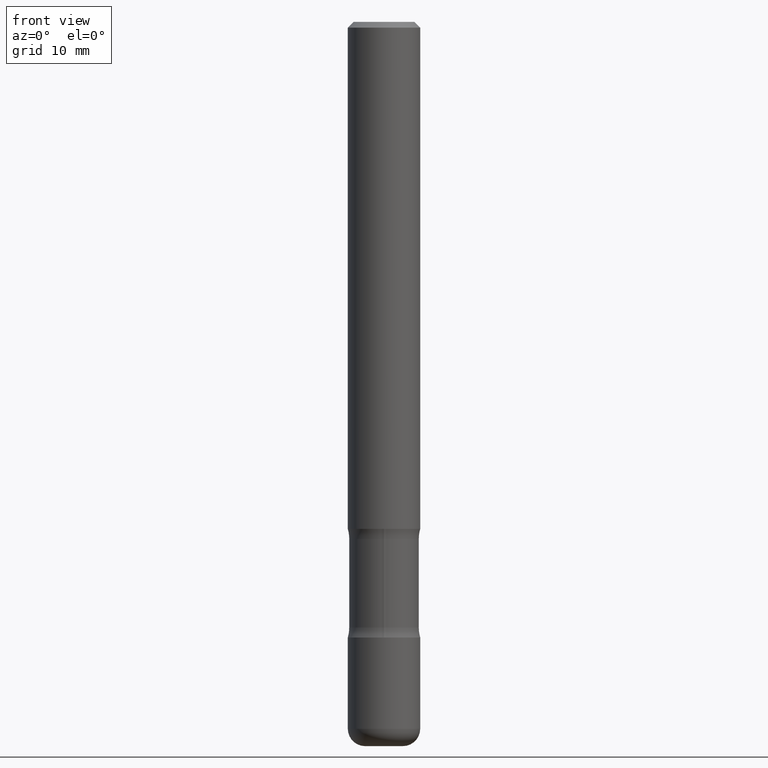
[diagram: clean part render]
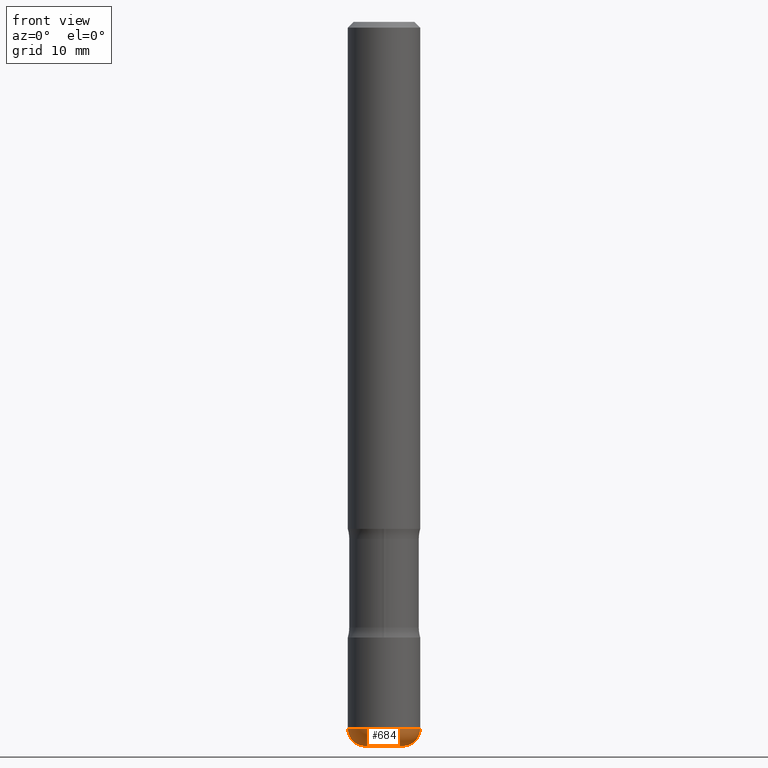
[diagram: same view with one face highlighted and labeled with its STEP entity id]
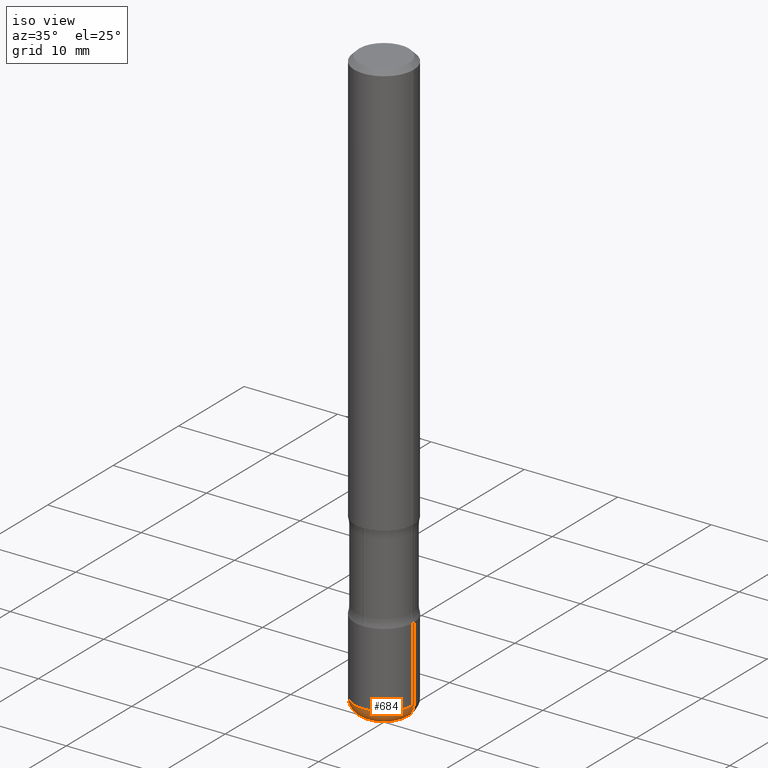
[diagram: same view with one face highlighted and labeled with its STEP entity id]
A machine part, front view. The second image highlights one B-rep face of the part: STEP entity #684.
A second angle (iso view) of the same face is appended — the face is thin or edge-on in the first view.
In plain terms, the highlighted toroidal blend (fillet) surface has major radius 1.651 mm and minor (blend) radius 1.524 mm.
Its self-contained STEP definition (entity closure, byte-faithful):
#4 = AXIS2_PLACEMENT_3D ( 'NONE', #162, #111, #786 ) ;
#111 = DIRECTION ( 'NONE',  ( -2.445468806185136597E-29, 3.491481338843145583E-15, 1.000000000000000000 ) ) ;
#113 = ORIENTED_EDGE ( 'NONE', *, *, #756, .T. ) ;
#115 = CARTESIAN_POINT ( 'NONE',  ( 0.06500000000000000222, -8.973107040826881753E-15, -2.440000000000000391 ) ) ;
#123 = VERTEX_POINT ( 'NONE', #642 ) ;
#162 = CARTESIAN_POINT ( 'NONE',  ( 5.966943887091733341E-29, -8.519214466777275048E-15, -2.440000000000000391 ) ) ;
#184 = CARTESIAN_POINT ( 'NONE',  ( -0.06500000000000001610, -7.948943307970475008E-15, -2.499999999999999556 ) ) ;
#191 = VERTEX_POINT ( 'NONE', #663 ) ;
#197 = EDGE_CURVE ( 'NONE', #441, #123, #232, .T. ) ;
#199 = ORIENTED_EDGE ( 'NONE', *, *, #697, .F. ) ;
#232 = CIRCLE ( 'NONE', #392, 0.1250000000000000000 ) ;
#235 = CARTESIAN_POINT ( 'NONE',  ( 5.966943887091733341E-29, -8.519214466777275048E-15, -2.440000000000000391 ) ) ;
#272 = CIRCLE ( 'NONE', #554, 0.05999999999999969247 ) ;
#318 = ORIENTED_EDGE ( 'NONE', *, *, #487, .T. ) ;
#325 = CIRCLE ( 'NONE', #466, 0.06500000000000001610 ) ;
#348 = VERTEX_POINT ( 'NONE', #184 ) ;
#356 = DIRECTION ( 'NONE',  ( 7.105427357601001859E-15, 1.000000000000000000, -3.491481338843145583E-15 ) ) ;
#364 = CARTESIAN_POINT ( 'NONE',  ( -0.06500000000000000222, -8.057361688533210306E-15, -2.440000000000000391 ) ) ;
#392 = AXIS2_PLACEMENT_3D ( 'NONE', #235, #721, #802 ) ;
#413 = FACE_OUTER_BOUND ( 'NONE', #688, .T. ) ;
#441 = VERTEX_POINT ( 'NONE', #745 ) ;
#452 = CIRCLE ( 'NONE', #782, 0.05999999999999969247 ) ;
#466 = AXIS2_PLACEMENT_3D ( 'NONE', #757, #774, #573 ) ;
#487 = EDGE_CURVE ( 'NONE', #348, #191, #325, .T. ) ;
#554 = AXIS2_PLACEMENT_3D ( 'NONE', #115, #716, #795 ) ;
#570 = ORIENTED_EDGE ( 'NONE', *, *, #197, .F. ) ;
#573 = DIRECTION ( 'NONE',  ( 1.000000000000000000, -6.982962677686272233E-15, 0.000000000000000000 ) ) ;
#593 = TOROIDAL_SURFACE ( 'NONE', #4, 0.06500000000000000222, 0.05999999999999968553 ) ;
#642 = CARTESIAN_POINT ( 'NONE',  ( 0.1249999999999998473, -9.392084801488056809E-15, -2.440000000000000391 ) ) ;
#661 = DIRECTION ( 'NONE',  ( -1.000000000000000000, 7.105427357600994759E-15, 0.000000000000000000 ) ) ;
#663 = CARTESIAN_POINT ( 'NONE',  ( 0.06500000000000001610, -9.182595921157470070E-15, -2.499999999999999556 ) ) ;
#684 = ADVANCED_FACE ( 'NONE', ( #413 ), #593, .T. ) ;
#688 = EDGE_LOOP ( 'NONE', ( #199, #318, #113, #570 ) ) ;
#697 = EDGE_CURVE ( 'NONE', #348, #441, #452, .T. ) ;
#716 = DIRECTION ( 'NONE',  ( -6.982962677686266711E-15, -1.000000000000000000, 3.491481338843145583E-15 ) ) ;
#721 = DIRECTION ( 'NONE',  ( -2.445468806185136597E-29, 3.491481338843145583E-15, 1.000000000000000000 ) ) ;
#745 = CARTESIAN_POINT ( 'NONE',  ( -0.1249999999999998473, -7.631036047077151393E-15, -2.440000000000000391 ) ) ;
#756 = EDGE_CURVE ( 'NONE', #191, #123, #272, .T. ) ;
#757 = CARTESIAN_POINT ( 'NONE',  ( 6.113672015462840371E-29, -8.728703347107863365E-15, -2.499999999999999556 ) ) ;
#774 = DIRECTION ( 'NONE',  ( -2.445468806185136597E-29, 3.491481338843145583E-15, 1.000000000000000000 ) ) ;
#782 = AXIS2_PLACEMENT_3D ( 'NONE', #364, #356, #661 ) ;
#786 = DIRECTION ( 'NONE',  ( 1.000000000000000000, -6.982962677686264344E-15, 4.883557194083112340E-29 ) ) ;
#795 = DIRECTION ( 'NONE',  ( 1.000000000000000000, -6.982962677686272233E-15, 0.000000000000000000 ) ) ;
#802 = DIRECTION ( 'NONE',  ( 1.000000000000000000, -6.982962677686262766E-15, 0.000000000000000000 ) ) ;